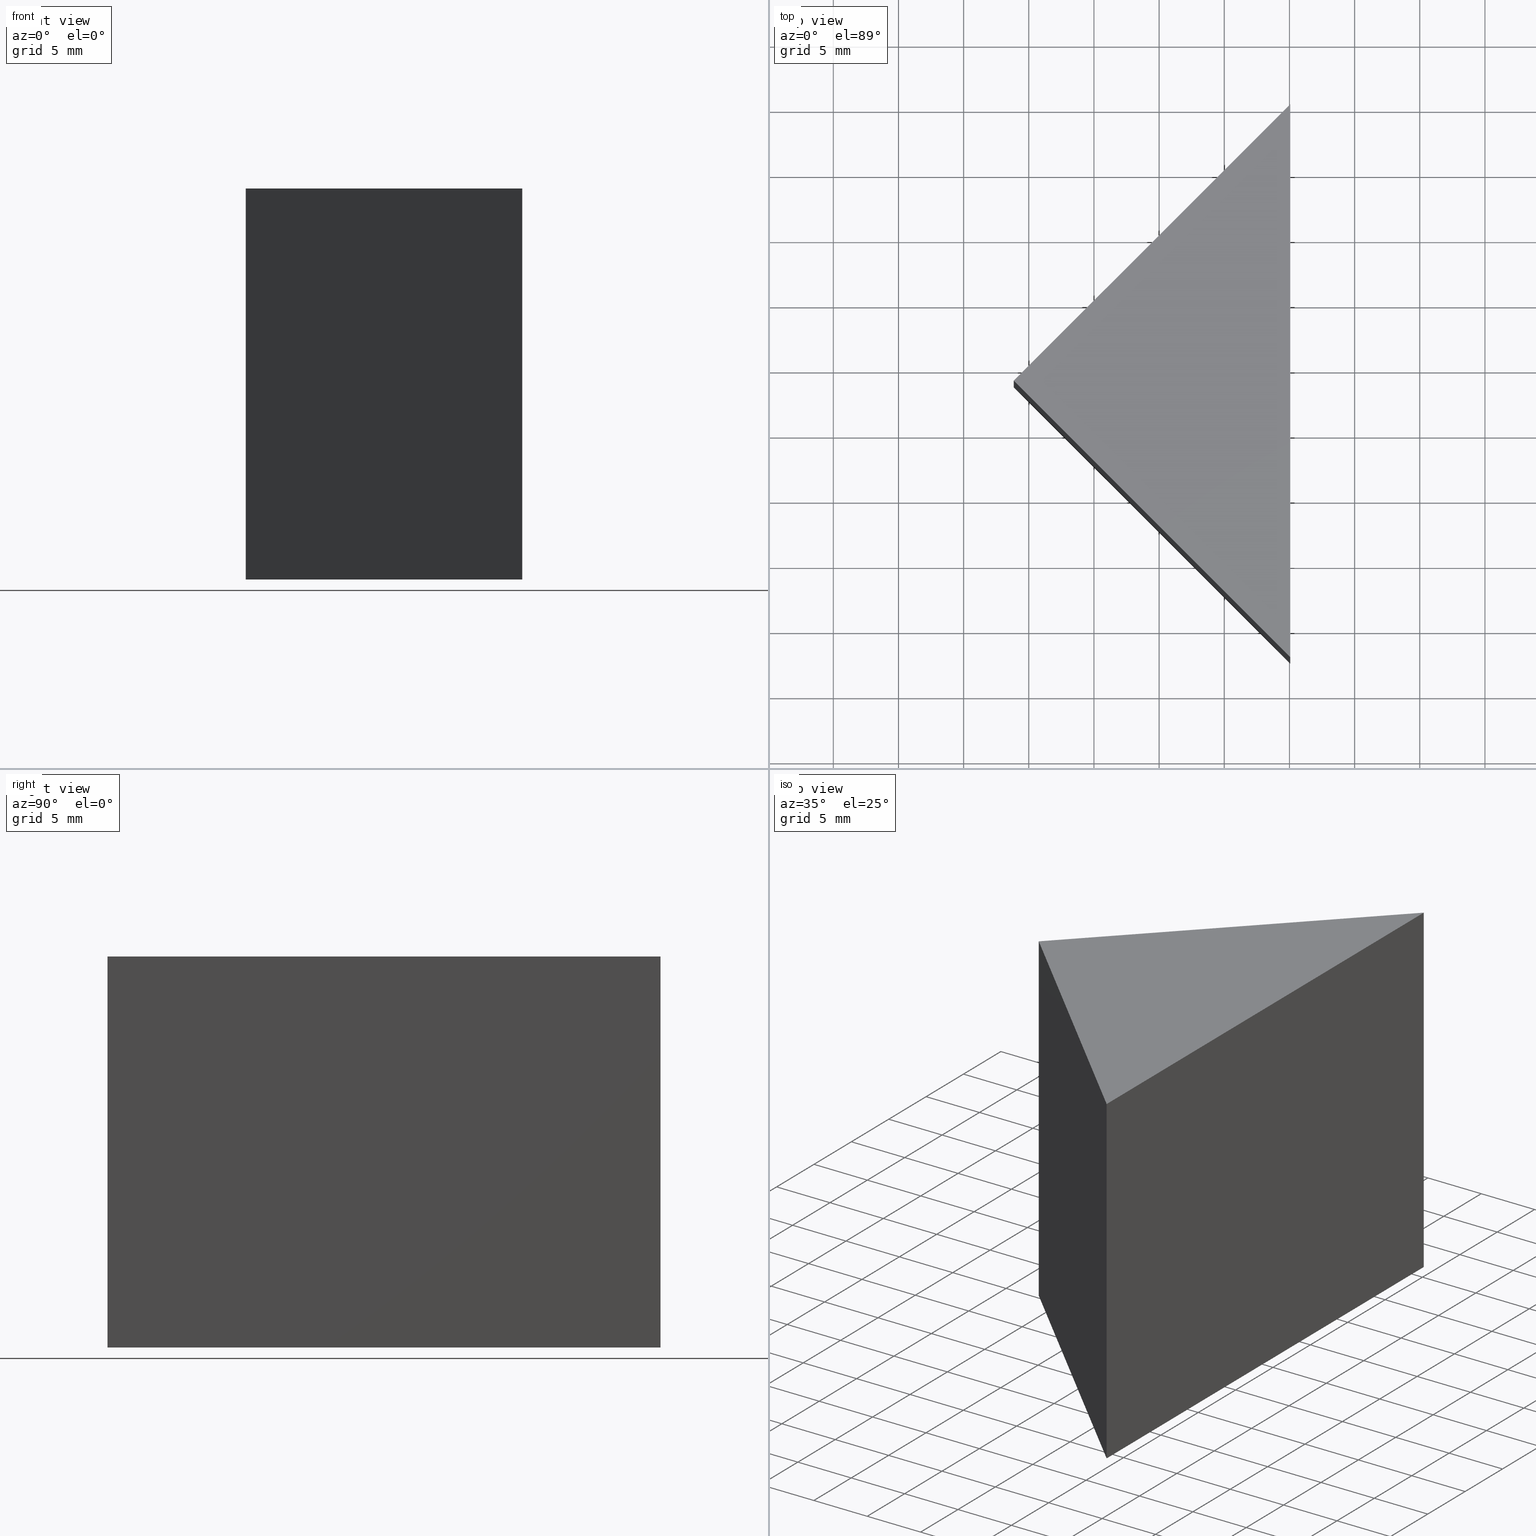
[diagram: canonical four-view strip — front | top / right | iso, engineering-drawing reading convention]
A machine part, canonical four-view strip (front | top / right | iso — engineering-drawing reading convention). The complete STEP part file that produces these views, byte-faithful:
ISO-10303-21;
HEADER;
FILE_DESCRIPTION (( 'STEP AP214' ),
    '1' );
FILE_NAME ('300006.STEP',
    '2019-08-12T08:10:09',
    ( '' ),
    ( '' ),
    'SwSTEP 2.0',
    'SolidWorks 2016',
    '' );
FILE_SCHEMA (( 'AUTOMOTIVE_DESIGN' ));
ENDSEC;

DATA;
#1 = ORIENTED_EDGE ( 'NONE', *, *, #154, .F. ) ;
#2 = DIRECTION ( 'NONE',  ( 0.7071067811865465700, -0.7071067811865485700, 0.0000000000000000000 ) ) ;
#3 = SURFACE_SIDE_STYLE ('',( #113 ) ) ;
#4 = DIRECTION ( 'NONE',  ( 1.000000000000000000, 0.0000000000000000000, -0.0000000000000000000 ) ) ;
#5 = SURFACE_STYLE_USAGE ( .BOTH. , #3 ) ;
#6 = VERTEX_POINT ( 'NONE', #30 ) ;
#7 = DIRECTION ( 'NONE',  ( 0.7071067811865481300, -0.7071067811865470200, 0.0000000000000000000 ) ) ;
#8 = PRODUCT_DEFINITION_CONTEXT ( 'detailed design', #159, 'design' ) ;
#9 = APPLICATION_PROTOCOL_DEFINITION ( 'draft international standard', 'automotive_design', 1998, #159 ) ;
#10 =( NAMED_UNIT ( * ) PLANE_ANGLE_UNIT ( ) SI_UNIT ( $, .RADIAN. ) );
#11 = DIRECTION ( 'NONE',  ( -0.0000000000000000000, -0.0000000000000000000, -1.000000000000000000 ) ) ;
#12 =( GEOMETRIC_REPRESENTATION_CONTEXT ( 3 ) GLOBAL_UNCERTAINTY_ASSIGNED_CONTEXT ( ( #101 ) ) GLOBAL_UNIT_ASSIGNED_CONTEXT ( ( #131, #10, #54 ) ) REPRESENTATION_CONTEXT ( 'NONE', 'WORKASPACE' ) );
#13 = ORIENTED_EDGE ( 'NONE', *, *, #42, .F. ) ;
#14 = MECHANICAL_DESIGN_GEOMETRIC_PRESENTATION_REPRESENTATION (  '', ( #78 ), #12 ) ;
#15 = VECTOR ( 'NONE', #140, 1000.000000000000000 ) ;
#16 = FACE_OUTER_BOUND ( 'NONE', #33, .T. ) ;
#17 =( LENGTH_UNIT ( ) NAMED_UNIT ( * ) SI_UNIT ( .MILLI., .METRE. ) );
#18 = DIRECTION ( 'NONE',  ( 0.7071067811865485700, 0.7071067811865465700, 0.0000000000000000000 ) ) ;
#19 = LINE ( 'NONE', #95, #116 ) ;
#20 = VECTOR ( 'NONE', #134, 1000.000000000000000 ) ;
#21 = FILL_AREA_STYLE_COLOUR ( '', #156 ) ;
#22 = CARTESIAN_POINT ( 'NONE',  ( 295.0610192926383200, 47.66525907389522100, 0.0000000000000000000 ) ) ;
#23 = ORIENTED_EDGE ( 'NONE', *, *, #63, .T. ) ;
#24 = AXIS2_PLACEMENT_3D ( 'NONE', #51, #141, #83 ) ;
#25 = ORIENTED_EDGE ( 'NONE', *, *, #42, .T. ) ;
#26 = PRESENTATION_STYLE_ASSIGNMENT (( #163 ) ) ;
#27 = ORIENTED_EDGE ( 'NONE', *, *, #106, .T. ) ;
#28 = PRODUCT_RELATED_PRODUCT_CATEGORY ( 'part', '', ( #76 ) ) ;
#29 = FILL_AREA_STYLE ('',( #50 ) ) ;
#30 = CARTESIAN_POINT ( 'NONE',  ( 295.0610192926383200, 90.09166594508805300, 0.0000000000000000000 ) ) ;
#31 = VERTEX_POINT ( 'NONE', #155 ) ;
#32 = CARTESIAN_POINT ( 'NONE',  ( 0.0000000000000000000, 0.0000000000000000000, 30.00000000000000000 ) ) ;
#33 = EDGE_LOOP ( 'NONE', ( #36, #165, #152, #160 ) ) ;
#34 = ADVANCED_FACE ( 'NONE', ( #94 ), #128, .F. ) ;
#35 = SURFACE_STYLE_FILL_AREA ( #87 ) ;
#36 = ORIENTED_EDGE ( 'NONE', *, *, #91, .T. ) ;
#37 = AXIS2_PLACEMENT_3D ( 'NONE', #107, #81, #4 ) ;
#38 = CARTESIAN_POINT ( 'NONE',  ( 295.0610192926383200, 90.09166594508805300, 30.00000000000000000 ) ) ;
#39 = PRODUCT_DEFINITION ( 'δ֪', '', #89, #8 ) ;
#40 = DIRECTION ( 'NONE',  ( 0.0000000000000000000, -0.0000000000000000000, 1.000000000000000000 ) ) ;
#41 = ADVANCED_FACE ( 'NONE', ( #103 ), #52, .F. ) ;
#42 = EDGE_CURVE ( 'NONE', #60, #68, #98, .T. ) ;
#43 = PRODUCT_CONTEXT ( 'NONE', #57, 'mechanical' ) ;
#44 = MANIFOLD_SOLID_BREP ( '͹̨-����1', #126 ) ;
#45 = FACE_OUTER_BOUND ( 'NONE', #168, .T. ) ;
#46 = EDGE_CURVE ( 'NONE', #68, #124, #123, .T. ) ;
#47 = VECTOR ( 'NONE', #139, 1000.000000000000000 ) ;
#48 = LINE ( 'NONE', #67, #82 ) ;
#49 = AXIS2_PLACEMENT_3D ( 'NONE', #143, #75, #71 ) ;
#50 = FILL_AREA_STYLE_COLOUR ( '', #85 ) ;
#51 = CARTESIAN_POINT ( 'NONE',  ( 273.8478158570418900, 68.87846250949164100, 30.00000000000000000 ) ) ;
#52 = PLANE ( 'NONE',  #104 ) ;
#53 = CARTESIAN_POINT ( 'NONE',  ( 273.8478158570418900, 68.87846250949164100, 30.00000000000000000 ) ) ;
#54 =( NAMED_UNIT ( * ) SI_UNIT ( $, .STERADIAN. ) SOLID_ANGLE_UNIT ( ) );
#55 = VECTOR ( 'NONE', #88, 1000.000000000000000 ) ;
#56 = PRESENTATION_LAYER_ASSIGNMENT (  '', '', ( #74 ) ) ;
#57 = APPLICATION_CONTEXT ( 'automotive_design' ) ;
#58 = CARTESIAN_POINT ( 'NONE',  ( 295.0610192926383200, 47.66525907389522100, 30.00000000000000000 ) ) ;
#59 = ADVANCED_FACE ( 'NONE', ( #16 ), #157, .F. ) ;
#60 = VERTEX_POINT ( 'NONE', #38 ) ;
#61 = LINE ( 'NONE', #144, #169 ) ;
#62 = ORIENTED_EDGE ( 'NONE', *, *, #100, .T. ) ;
#63 = EDGE_CURVE ( 'NONE', #137, #6, #48, .T. ) ;
#64 = ORIENTED_EDGE ( 'NONE', *, *, #154, .T. ) ;
#65 =( GEOMETRIC_REPRESENTATION_CONTEXT ( 3 ) GLOBAL_UNCERTAINTY_ASSIGNED_CONTEXT ( ( #92 ) ) GLOBAL_UNIT_ASSIGNED_CONTEXT ( ( #146, #119, #96 ) ) REPRESENTATION_CONTEXT ( 'NONE', 'WORKASPACE' ) );
#66 = CARTESIAN_POINT ( 'NONE',  ( 273.8478158570418900, 68.87846250949164100, 30.00000000000000000 ) ) ;
#67 = CARTESIAN_POINT ( 'NONE',  ( 295.0610192926383200, 47.66525907389522100, 0.0000000000000000000 ) ) ;
#68 = VERTEX_POINT ( 'NONE', #147 ) ;
#69 = DIRECTION ( 'NONE',  ( 0.0000000000000000000, 0.0000000000000000000, 1.000000000000000000 ) ) ;
#70 = UNCERTAINTY_MEASURE_WITH_UNIT (LENGTH_MEASURE( 1.000000000000000100E-005 ), #17, 'distance_accuracy_value', 'NONE');
#71 = DIRECTION ( 'NONE',  ( 1.000000000000000000, 0.0000000000000000000, 0.0000000000000000000 ) ) ;
#72 = DIRECTION ( 'NONE',  ( -0.0000000000000000000, -0.0000000000000000000, -1.000000000000000000 ) ) ;
#73 = CARTESIAN_POINT ( 'NONE',  ( 295.0610192926383200, 90.09166594508805300, 0.0000000000000000000 ) ) ;
#74 = STYLED_ITEM ( 'NONE', ( #138 ), #44 ) ;
#75 = DIRECTION ( 'NONE',  ( 0.0000000000000000000, 0.0000000000000000000, 1.000000000000000000 ) ) ;
#76 = PRODUCT ( '300006', '300006', '', ( #43 ) ) ;
#77 = EDGE_LOOP ( 'NONE', ( #64, #25, #27 ) ) ;
#78 = STYLED_ITEM ( 'NONE', ( #26 ), #114 ) ;
#79 = AXIS2_PLACEMENT_3D ( 'NONE', #32, #40, #164 ) ;
#80 = EDGE_LOOP ( 'NONE', ( #120, #136, #13, #108 ) ) ;
#81 = DIRECTION ( 'NONE',  ( 0.0000000000000000000, -0.0000000000000000000, 1.000000000000000000 ) ) ;
#82 = VECTOR ( 'NONE', #129, 1000.000000000000000 ) ;
#83 = DIRECTION ( 'NONE',  ( -0.7071067811865481300, 0.7071067811865470200, 0.0000000000000000000 ) ) ;
#84 =( NAMED_UNIT ( * ) PLANE_ANGLE_UNIT ( ) SI_UNIT ( $, .RADIAN. ) );
#85 = COLOUR_RGB ( '',1.000000000000000000, 1.000000000000000000, 1.000000000000000000 ) ;
#86 = APPLICATION_PROTOCOL_DEFINITION ( 'draft international standard', 'automotive_design', 1998, #57 ) ;
#87 = FILL_AREA_STYLE ('',( #21 ) ) ;
#88 = DIRECTION ( 'NONE',  ( 0.7071067811865481300, -0.7071067811865470200, 0.0000000000000000000 ) ) ;
#89 = PRODUCT_DEFINITION_FORMATION_WITH_SPECIFIED_SOURCE ( '�κ�', '', #76, .NOT_KNOWN. ) ;
#90 = ADVANCED_FACE ( 'NONE', ( #45 ), #158, .F. ) ;
#91 = EDGE_CURVE ( 'NONE', #124, #137, #150, .T. ) ;
#92 = UNCERTAINTY_MEASURE_WITH_UNIT (LENGTH_MEASURE( 1.000000000000000100E-005 ), #146, 'distance_accuracy_value', 'NONE');
#93 = EDGE_LOOP ( 'NONE', ( #149, #102, #135 ) ) ;
#94 = FACE_OUTER_BOUND ( 'NONE', #93, .T. ) ;
#95 = CARTESIAN_POINT ( 'NONE',  ( 295.0610192926383200, 47.66525907389522100, 30.00000000000000000 ) ) ;
#96 =( NAMED_UNIT ( * ) SI_UNIT ( $, .STERADIAN. ) SOLID_ANGLE_UNIT ( ) );
#97 = CARTESIAN_POINT ( 'NONE',  ( 295.0610192926383200, 90.09166594508805300, 30.00000000000000000 ) ) ;
#98 = LINE ( 'NONE', #118, #47 ) ;
#99 = PLANE ( 'NONE',  #79 ) ;
#100 = EDGE_CURVE ( 'NONE', #31, #137, #19, .T. ) ;
#101 = UNCERTAINTY_MEASURE_WITH_UNIT (LENGTH_MEASURE( 1.000000000000000100E-005 ), #131, 'distance_accuracy_value', 'NONE');
#102 = ORIENTED_EDGE ( 'NONE', *, *, #91, .F. ) ;
#103 = FACE_OUTER_BOUND ( 'NONE', #80, .T. ) ;
#104 = AXIS2_PLACEMENT_3D ( 'NONE', #130, #2, #18 ) ;
#105 =( NAMED_UNIT ( * ) SI_UNIT ( $, .STERADIAN. ) SOLID_ANGLE_UNIT ( ) );
#106 = EDGE_CURVE ( 'NONE', #68, #31, #122, .T. ) ;
#107 = CARTESIAN_POINT ( 'NONE',  ( 0.0000000000000000000, 0.0000000000000000000, 0.0000000000000000000 ) ) ;
#108 = ORIENTED_EDGE ( 'NONE', *, *, #115, .T. ) ;
#109 = DIRECTION ( 'NONE',  ( -1.000000000000000000, 0.0000000000000000000, 0.0000000000000000000 ) ) ;
#110 = VECTOR ( 'NONE', #11, 1000.000000000000000 ) ;
#111 = CARTESIAN_POINT ( 'NONE',  ( 273.8478158570418900, 68.87846250949164100, 0.0000000000000000000 ) ) ;
#112 = DIRECTION ( 'NONE',  ( 0.0000000000000000000, 1.000000000000000000, 0.0000000000000000000 ) ) ;
#113 = SURFACE_STYLE_FILL_AREA ( #29 ) ;
#114 = ADVANCED_BREP_SHAPE_REPRESENTATION ( '300006', ( #44, #49 ), #65 ) ;
#115 = EDGE_CURVE ( 'NONE', #60, #6, #161, .T. ) ;
#116 = VECTOR ( 'NONE', #72, 1000.000000000000000 ) ;
#117 = VECTOR ( 'NONE', #7, 1000.000000000000000 ) ;
#118 = CARTESIAN_POINT ( 'NONE',  ( 295.0610192926383200, 90.09166594508805300, 30.00000000000000000 ) ) ;
#119 =( NAMED_UNIT ( * ) PLANE_ANGLE_UNIT ( ) SI_UNIT ( $, .RADIAN. ) );
#120 = ORIENTED_EDGE ( 'NONE', *, *, #142, .T. ) ;
#121 = CARTESIAN_POINT ( 'NONE',  ( 273.8478158570418900, 68.87846250949164100, 0.0000000000000000000 ) ) ;
#122 = LINE ( 'NONE', #53, #55 ) ;
#123 = LINE ( 'NONE', #66, #15 ) ;
#124 = VERTEX_POINT ( 'NONE', #121 ) ;
#125 = MECHANICAL_DESIGN_GEOMETRIC_PRESENTATION_REPRESENTATION (  '', ( #74 ), #162 ) ;
#126 = CLOSED_SHELL ( 'NONE', ( #90, #41, #59, #166, #34 ) ) ;
#127 = LINE ( 'NONE', #73, #20 ) ;
#128 = PLANE ( 'NONE',  #37 ) ;
#129 = DIRECTION ( 'NONE',  ( 0.0000000000000000000, 1.000000000000000000, 0.0000000000000000000 ) ) ;
#130 = CARTESIAN_POINT ( 'NONE',  ( 295.0610192926383200, 90.09166594508805300, 30.00000000000000000 ) ) ;
#131 =( LENGTH_UNIT ( ) NAMED_UNIT ( * ) SI_UNIT ( .MILLI., .METRE. ) );
#132 = SURFACE_SIDE_STYLE ('',( #35 ) ) ;
#133 = ORIENTED_EDGE ( 'NONE', *, *, #115, .F. ) ;
#134 = DIRECTION ( 'NONE',  ( -0.7071067811865484600, -0.7071067811865465700, 0.0000000000000000000 ) ) ;
#135 = ORIENTED_EDGE ( 'NONE', *, *, #142, .F. ) ;
#136 = ORIENTED_EDGE ( 'NONE', *, *, #46, .F. ) ;
#137 = VERTEX_POINT ( 'NONE', #22 ) ;
#138 = PRESENTATION_STYLE_ASSIGNMENT (( #5 ) ) ;
#139 = DIRECTION ( 'NONE',  ( -0.7071067811865484600, -0.7071067811865465700, 0.0000000000000000000 ) ) ;
#140 = DIRECTION ( 'NONE',  ( -0.0000000000000000000, -0.0000000000000000000, -1.000000000000000000 ) ) ;
#141 = DIRECTION ( 'NONE',  ( 0.7071067811865470200, 0.7071067811865481300, -0.0000000000000000000 ) ) ;
#142 = EDGE_CURVE ( 'NONE', #6, #124, #127, .T. ) ;
#143 = CARTESIAN_POINT ( 'NONE',  ( 0.0000000000000000000, 0.0000000000000000000, 0.0000000000000000000 ) ) ;
#144 = CARTESIAN_POINT ( 'NONE',  ( 295.0610192926383200, 47.66525907389522100, 30.00000000000000000 ) ) ;
#145 = FACE_OUTER_BOUND ( 'NONE', #77, .T. ) ;
#146 =( LENGTH_UNIT ( ) NAMED_UNIT ( * ) SI_UNIT ( .MILLI., .METRE. ) );
#147 = CARTESIAN_POINT ( 'NONE',  ( 273.8478158570418900, 68.87846250949164100, 30.00000000000000000 ) ) ;
#148 = PRESENTATION_LAYER_ASSIGNMENT (  '', '', ( #78 ) ) ;
#149 = ORIENTED_EDGE ( 'NONE', *, *, #63, .F. ) ;
#150 = LINE ( 'NONE', #111, #117 ) ;
#151 = PRODUCT_DEFINITION_SHAPE ( 'NONE', 'NONE',  #39 ) ;
#152 = ORIENTED_EDGE ( 'NONE', *, *, #106, .F. ) ;
#153 = SHAPE_DEFINITION_REPRESENTATION ( #151, #114 ) ;
#154 = EDGE_CURVE ( 'NONE', #31, #60, #61, .T. ) ;
#155 = CARTESIAN_POINT ( 'NONE',  ( 295.0610192926383200, 47.66525907389522100, 30.00000000000000000 ) ) ;
#156 = COLOUR_RGB ( '',1.000000000000000000, 1.000000000000000000, 1.000000000000000000 ) ;
#157 = PLANE ( 'NONE',  #24 ) ;
#158 = PLANE ( 'NONE',  #167 ) ;
#159 = APPLICATION_CONTEXT ( 'automotive_design' ) ;
#160 = ORIENTED_EDGE ( 'NONE', *, *, #46, .T. ) ;
#161 = LINE ( 'NONE', #97, #110 ) ;
#162 =( GEOMETRIC_REPRESENTATION_CONTEXT ( 3 ) GLOBAL_UNCERTAINTY_ASSIGNED_CONTEXT ( ( #70 ) ) GLOBAL_UNIT_ASSIGNED_CONTEXT ( ( #17, #84, #105 ) ) REPRESENTATION_CONTEXT ( 'NONE', 'WORKASPACE' ) );
#163 = SURFACE_STYLE_USAGE ( .BOTH. , #132 ) ;
#164 = DIRECTION ( 'NONE',  ( 1.000000000000000000, 0.0000000000000000000, -0.0000000000000000000 ) ) ;
#165 = ORIENTED_EDGE ( 'NONE', *, *, #100, .F. ) ;
#166 = ADVANCED_FACE ( 'NONE', ( #145 ), #99, .T. ) ;
#167 = AXIS2_PLACEMENT_3D ( 'NONE', #58, #109, #69 ) ;
#168 = EDGE_LOOP ( 'NONE', ( #23, #133, #1, #62 ) ) ;
#169 = VECTOR ( 'NONE', #112, 1000.000000000000000 ) ;
ENDSEC;
END-ISO-10303-21;
